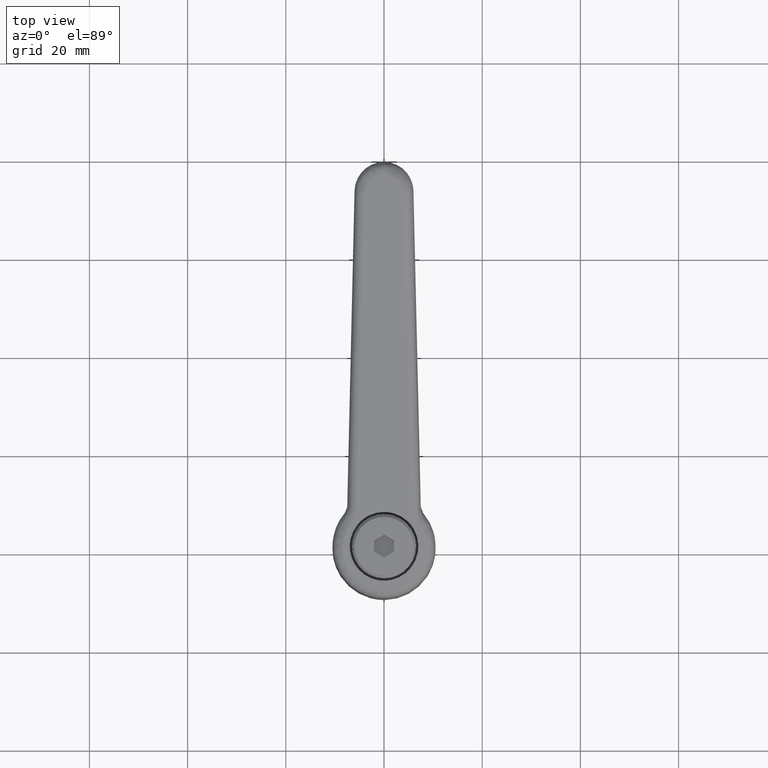
[diagram: clean part render]
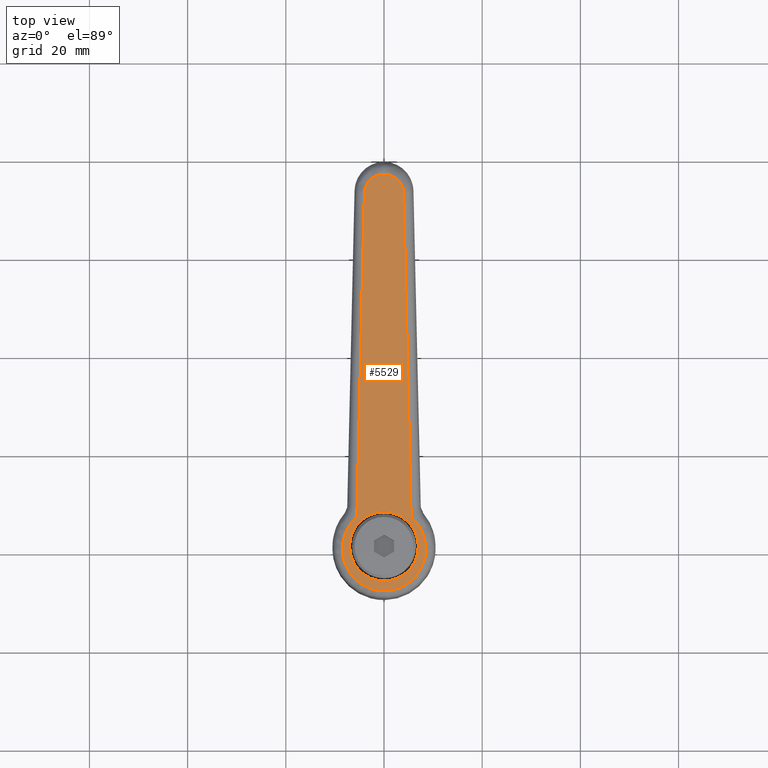
[diagram: same view with one face highlighted and labeled with its STEP entity id]
A machine part, top view. The second image highlights one B-rep face of the part: STEP entity #5529.
In plain terms, the highlighted face is a freeform B-spline surface patch.
Its self-contained STEP definition (entity closure, byte-faithful):
#2023=CARTESIAN_POINT('',(5.160941850648612,4.729130915318706,27.861630272116152));
#2024=VERTEX_POINT('',#2023);
#2030=CARTESIAN_POINT('',(-7.0,0.0,24.563752396048091));
#2031=VERTEX_POINT('',#2030);
#2032=CARTESIAN_POINT('',(5.160941850648612,4.729130915318706,27.861630272116148));
#2033=CARTESIAN_POINT('',(3.080074172355197,6.999999210551019,27.297327436019145));
#2034=CARTESIAN_POINT('',(0.000000546782841,6.999999403291176,26.462054204915891));
#2035=CARTESIAN_POINT('',(-6.999999854602577,6.999999841326539,24.563751221362129));
#2036=CARTESIAN_POINT('',(-7.0,0.0,24.563752396048091));
#2044=(BOUNDED_CURVE()B_SPLINE_CURVE(2,(#2032,#2033,#2034,#2035,#2036),.UNSPECIFIED.,.F.,.U.)B_SPLINE_CURVE_WITH_KNOTS((3,2,3),(0.618415218742481,0.750000000000000,1.0),.UNSPECIFIED.)CURVE()GEOMETRIC_REPRESENTATION_ITEM()RATIONAL_B_SPLINE_CURVE((0.853959779645790,0.845838839482485,1.0,0.707106781186548,1.0))REPRESENTATION_ITEM(''));
#2045=EDGE_CURVE('',#2024,#2031,#2044,.T.);
#2047=CARTESIAN_POINT('',(5.016556805571137,-4.882023946733352,27.822481625181059));
#2048=VERTEX_POINT('',#2047);
#2049=CARTESIAN_POINT('',(-7.0,0.0,24.563752396048091));
#2050=CARTESIAN_POINT('',(-6.999999999999999,-6.999999999999999,24.563752396048088));
#2051=CARTESIAN_POINT('',(-4.286122E-016,-7.0,26.462058622450350));
#2052=CARTESIAN_POINT('',(2.955380143687071,-7.0,27.263518126471318));
#2053=CARTESIAN_POINT('',(5.016556805571137,-4.882023946733352,27.822481625181055));
#2061=(BOUNDED_CURVE()B_SPLINE_CURVE(2,(#2049,#2050,#2051,#2052,#2053),.UNSPECIFIED.,.F.,.U.)B_SPLINE_CURVE_WITH_KNOTS((3,2,3),(0.0,0.250000000000000,0.377050647860242),.UNSPECIFIED.)CURVE()GEOMETRIC_REPRESENTATION_ITEM()RATIONAL_B_SPLINE_CURVE((1.0,0.707106781186548,1.0,0.851150907183517,0.853592803772982))REPRESENTATION_ITEM(''));
#2062=EDGE_CURVE('',#2031,#2048,#2061,.T.);
#2098=CARTESIAN_POINT('',(7.0,-8.572244E-016,28.360364848852608));
#2099=VERTEX_POINT('',#2098);
#2100=CARTESIAN_POINT('',(5.016556805571137,-4.882023946733352,27.822481625181055));
#2101=CARTESIAN_POINT('',(7.000000000000001,-2.843923444966988,28.360364848852608));
#2102=CARTESIAN_POINT('',(7.0,-8.572244E-016,28.360364848852608));
#2110=(BOUNDED_CURVE()B_SPLINE_CURVE(2,(#2100,#2101,#2102),.UNSPECIFIED.,.F.,.U.)B_SPLINE_CURVE_WITH_KNOTS((3,3),(0.377050647860243,0.500000000000000),.UNSPECIFIED.)CURVE()GEOMETRIC_REPRESENTATION_ITEM()RATIONAL_B_SPLINE_CURVE((0.853592803772982,0.855955874003031,1.0))REPRESENTATION_ITEM(''));
#2111=EDGE_CURVE('',#2048,#2099,#2110,.T.);
#2113=CARTESIAN_POINT('',(7.0,-8.572244E-016,28.360364848852608));
#2114=CARTESIAN_POINT('',(7.000000393967464,2.722150950824406,28.360361665934782));
#2115=CARTESIAN_POINT('',(5.160941850648612,4.729130915318706,27.861630272116148));
#2123=(BOUNDED_CURVE()B_SPLINE_CURVE(2,(#2113,#2114,#2115),.UNSPECIFIED.,.F.,.U.)B_SPLINE_CURVE_WITH_KNOTS((3,3),(0.500000000000000,0.618415218742481),.UNSPECIFIED.)CURVE()GEOMETRIC_REPRESENTATION_ITEM()RATIONAL_B_SPLINE_CURVE((1.0,0.861267941704063,0.853959779645790))REPRESENTATION_ITEM(''));
#2124=EDGE_CURVE('',#2099,#2024,#2123,.T.);
#4551=CARTESIAN_POINT('',(5.940270675266100,-5.519973294428710,28.072980452360650));
#4552=VERTEX_POINT('',#4551);
#4800=CARTESIAN_POINT('',(5.940270675266040,5.519973294428770,28.072980452360650));
#4801=VERTEX_POINT('',#4800);
#5171=CARTESIAN_POINT('',(5.940270675266040,5.519973294428770,28.072980452360650));
#5172=CARTESIAN_POINT('',(2.092957256438765,10.025071493159286,27.029640592663412));
#5173=CARTESIAN_POINT('',(-3.465254488648613,7.974702619111119,25.522328026468902));
#5174=CARTESIAN_POINT('',(-9.023466233735919,5.924333745062977,24.015015460274405));
#5175=CARTESIAN_POINT('',(-9.023466233735919,-9.606188E-014,24.015015460274409));
#5176=CARTESIAN_POINT('',(-9.023466233735919,-5.924333745063118,24.015015460274405));
#5177=CARTESIAN_POINT('',(-3.465254488648433,-7.974702619111184,25.522328026468951));
#5178=CARTESIAN_POINT('',(2.092957256438992,-10.025071493159230,27.029640592663473));
#5179=CARTESIAN_POINT('',(5.940270675266100,-5.519973294428710,28.072980452360650));
#5187=(BOUNDED_CURVE()B_SPLINE_CURVE(2,(#5171,#5172,#5173,#5174,#5175,#5176,#5177,#5178,#5179),.UNSPECIFIED.,.F.,.U.)B_SPLINE_CURVE_WITH_KNOTS((3,2,2,2,3),(0.0,0.250000000000000,0.500000000000000,0.750000000000000,1.0),.UNSPECIFIED.)CURVE()GEOMETRIC_REPRESENTATION_ITEM()RATIONAL_B_SPLINE_CURVE((1.0,0.820394032118735,1.0,0.820394032118735,1.0,0.820394032118735,1.0,0.820394032118735,1.0))REPRESENTATION_ITEM(''));
#5188=EDGE_CURVE('',#4801,#4552,#5187,.T.);
#5217=CARTESIAN_POINT('',(71.569214214229888,3.998934980117755,45.870670759820300));
#5218=VERTEX_POINT('',#5217);
#5219=CARTESIAN_POINT('',(71.569214214229888,3.998934980117755,45.870670759820300));
#5220=CARTESIAN_POINT('',(5.940270675266040,5.519973294428770,28.072980452360650));
#5221=QUASI_UNIFORM_CURVE('',1,(#5219,#5220),.UNSPECIFIED.,.F.,.U.);
#5222=EDGE_CURVE('',#5218,#4801,#5221,.T.);
#5253=CARTESIAN_POINT('',(71.569214214229888,-3.998934980117811,45.870670759820300));
#5254=VERTEX_POINT('',#5253);
#5255=CARTESIAN_POINT('',(5.940270675266100,-5.519973294428710,28.072980452360650));
#5256=CARTESIAN_POINT('',(71.569214214229888,-3.998934980117811,45.870670759820300));
#5257=QUASI_UNIFORM_CURVE('',1,(#5255,#5256),.UNSPECIFIED.,.F.,.U.);
#5258=EDGE_CURVE('',#4552,#5254,#5257,.T.);
#5361=CARTESIAN_POINT('',(75.476533766264112,0.0,46.930283478987398));
#5362=VERTEX_POINT('',#5361);
#5392=CARTESIAN_POINT('',(75.476533766264112,0.0,46.930283478987398));
#5393=CARTESIAN_POINT('',(75.476533766264112,3.908373067859956,46.930283478987413));
#5394=CARTESIAN_POINT('',(71.569214214229888,3.998934980117755,45.870670759820300));
#5402=(BOUNDED_CURVE()B_SPLINE_CURVE(2,(#5392,#5393,#5394),.UNSPECIFIED.,.F.,.U.)CURVE()GEOMETRIC_REPRESENTATION_ITEM()QUASI_UNIFORM_CURVE()RATIONAL_B_SPLINE_CURVE((1.0,0.715251743091706,1.0))REPRESENTATION_ITEM(''));
#5403=EDGE_CURVE('',#5362,#5218,#5402,.T.);
#5447=CARTESIAN_POINT('',(71.569214214229888,-3.998934980117756,45.870670759820293));
#5448=CARTESIAN_POINT('',(75.476542396383621,-3.908377437192929,46.930285819360201));
#5449=CARTESIAN_POINT('',(75.476533766264112,0.0,46.930283478987398));
#5457=(BOUNDED_CURVE()B_SPLINE_CURVE(2,(#5447,#5448,#5449),.UNSPECIFIED.,.F.,.U.)CURVE()GEOMETRIC_REPRESENTATION_ITEM()QUASI_UNIFORM_CURVE()RATIONAL_B_SPLINE_CURVE((1.0,0.715250971503600,1.0))REPRESENTATION_ITEM(''));
#5458=EDGE_CURVE('',#5254,#5362,#5457,.T.);
#5511=CARTESIAN_POINT('',(79.697307016035623,-9.333844917046429,48.074900641883588));
#5512=CARTESIAN_POINT('',(-13.244243260951700,-9.333844917046429,22.870397272985912));
#5513=CARTESIAN_POINT('',(79.697307016035623,9.333845441375978,48.074900641883588));
#5514=CARTESIAN_POINT('',(-13.244243260951700,9.333845441375978,22.870397272985912));
#5515=B_SPLINE_SURFACE_WITH_KNOTS('',1,1,((#5511,#5513),(#5512,#5514)),.UNSPECIFIED.,.F.,.F.,.U.,(2,2),(2,2),(0.0,96.298487828015951),(0.0,18.667690358422409),.UNSPECIFIED.);
#5516=ORIENTED_EDGE('',*,*,#5222,.T.);
#5517=ORIENTED_EDGE('',*,*,#5188,.T.);
#5518=ORIENTED_EDGE('',*,*,#5258,.T.);
#5519=ORIENTED_EDGE('',*,*,#5458,.T.);
#5520=ORIENTED_EDGE('',*,*,#5403,.T.);
#5521=EDGE_LOOP('',(#5516,#5517,#5518,#5519,#5520));
#5522=FACE_OUTER_BOUND('',#5521,.T.);
#5523=ORIENTED_EDGE('',*,*,#2124,.F.);
#5524=ORIENTED_EDGE('',*,*,#2111,.F.);
#5525=ORIENTED_EDGE('',*,*,#2062,.F.);
#5526=ORIENTED_EDGE('',*,*,#2045,.F.);
#5527=EDGE_LOOP('',(#5523,#5524,#5525,#5526));
#5528=FACE_BOUND('',#5527,.T.);
#5529=ADVANCED_FACE('',(#5522,#5528),#5515,.F.);